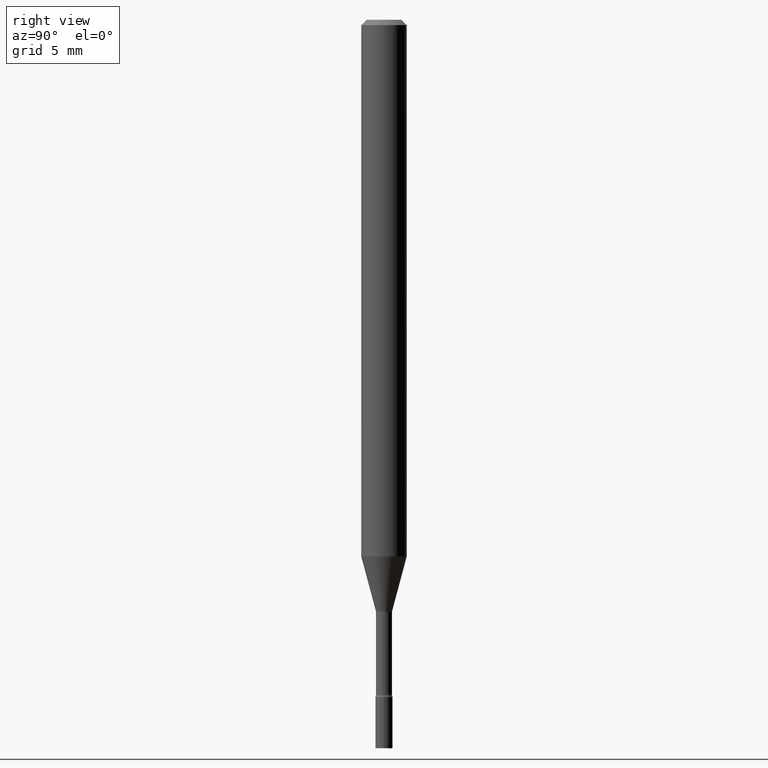
[diagram: clean part render]
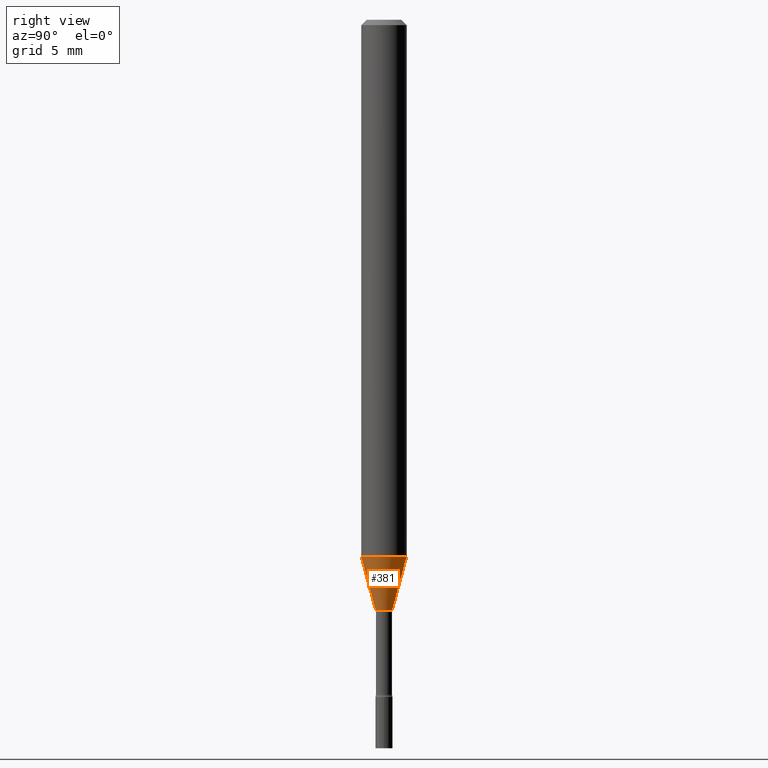
[diagram: same view with one face highlighted and labeled with its STEP entity id]
A machine part, right view. The second image highlights one B-rep face of the part: STEP entity #381.
In plain terms, the highlighted conical surface has half-angle 15 deg.
Its self-contained STEP definition (entity closure, byte-faithful):
#2 = CIRCLE ( 'NONE', #391, 0.02261111260566397996 ) ;
#15 = EDGE_LOOP ( 'NONE', ( #471, #161, #368, #103 ) ) ;
#19 = DIRECTION ( 'NONE',  ( -2.445478591985838029E-29, 3.491467325019567696E-15, 1.000000000000000000 ) ) ;
#20 = DIRECTION ( 'NONE',  ( -1.807323732225329350E-15, -0.2588190451025180194, 0.9659258262890689783 ) ) ;
#29 = EDGE_CURVE ( 'NONE', #146, #87, #348, .T. ) ;
#47 = FACE_OUTER_BOUND ( 'NONE', #15, .T. ) ;
#57 = CARTESIAN_POINT ( 'NONE',  ( 3.966792487341526174E-29, -5.663482968149508762E-15, -1.622092501787272933 ) ) ;
#87 = VERTEX_POINT ( 'NONE', #111 ) ;
#94 = CARTESIAN_POINT ( 'NONE',  ( -1.578925554262733618E-16, -0.02261111260566964209, -1.622092501787272933 ) ) ;
#103 = ORIENTED_EDGE ( 'NONE', *, *, #29, .F. ) ;
#111 = CARTESIAN_POINT ( 'NONE',  ( -4.364351673553557762E-16, -0.06250000000000517641, -1.473225147374217503 ) ) ;
#121 = DIRECTION ( 'NONE',  ( -2.445478591985838029E-29, 3.491467325019567696E-15, 1.000000000000000000 ) ) ;
#124 = CARTESIAN_POINT ( 'NONE',  ( 3.966792487341526174E-29, -5.663482968149508762E-15, -1.622092501787272933 ) ) ;
#135 = AXIS2_PLACEMENT_3D ( 'NONE', #124, #281, #375 ) ;
#146 = VERTEX_POINT ( 'NONE', #156 ) ;
#156 = CARTESIAN_POINT ( 'NONE',  ( -1.578925554262733618E-16, -0.02261111260566964209, -1.622092501787272933 ) ) ;
#161 = ORIENTED_EDGE ( 'NONE', *, *, #470, .T. ) ;
#167 = CIRCLE ( 'NONE', #284, 0.06250000000000000000 ) ;
#181 = CARTESIAN_POINT ( 'NONE',  ( 1.606616180941213573E-16, 0.02261111260565831435, -1.622092501787272933 ) ) ;
#205 = VECTOR ( 'NONE', #345, 39.37007874015748143 ) ;
#225 = LINE ( 'NONE', #181, #205 ) ;
#281 = DIRECTION ( 'NONE',  ( -2.445478591985838029E-29, 3.491467325019567696E-15, 1.000000000000000000 ) ) ;
#284 = AXIS2_PLACEMENT_3D ( 'NONE', #291, #121, #325 ) ;
#291 = CARTESIAN_POINT ( 'NONE',  ( 3.602740559078830518E-29, -5.143717464454219042E-15, -1.473225147374217725 ) ) ;
#304 = CARTESIAN_POINT ( 'NONE',  ( 4.440892098500984107E-16, 0.06249999999999482359, -1.473225147374217947 ) ) ;
#306 = DIRECTION ( 'NONE',  ( -6.982962677686265922E-15, -1.000000000000000000, 0.000000000000000000 ) ) ;
#325 = DIRECTION ( 'NONE',  ( -6.982962677686265922E-15, -1.000000000000000000, 4.370956789862821150E-15 ) ) ;
#343 = EDGE_CURVE ( 'NONE', #87, #504, #167, .T. ) ;
#345 = DIRECTION ( 'NONE',  ( 1.839019923739599526E-15, 0.2588190451025248473, 0.9659258262890670910 ) ) ;
#348 = LINE ( 'NONE', #94, #458 ) ;
#368 = ORIENTED_EDGE ( 'NONE', *, *, #343, .F. ) ;
#374 = VERTEX_POINT ( 'NONE', #417 ) ;
#375 = DIRECTION ( 'NONE',  ( -6.982962677686265922E-15, -1.000000000000000000, 0.000000000000000000 ) ) ;
#381 = ADVANCED_FACE ( 'NONE', ( #47 ), #416, .T. ) ;
#391 = AXIS2_PLACEMENT_3D ( 'NONE', #57, #19, #306 ) ;
#416 = CONICAL_SURFACE ( 'NONE', #135, 0.02261111260566397996, 0.2617993877991501850 ) ;
#417 = CARTESIAN_POINT ( 'NONE',  ( 3.023754139721100812E-16, 0.02261111260565831782, -1.622092501787272933 ) ) ;
#458 = VECTOR ( 'NONE', #20, 39.37007874015749564 ) ;
#470 = EDGE_CURVE ( 'NONE', #374, #504, #225, .T. ) ;
#471 = ORIENTED_EDGE ( 'NONE', *, *, #495, .T. ) ;
#495 = EDGE_CURVE ( 'NONE', #146, #374, #2, .T. ) ;
#504 = VERTEX_POINT ( 'NONE', #304 ) ;